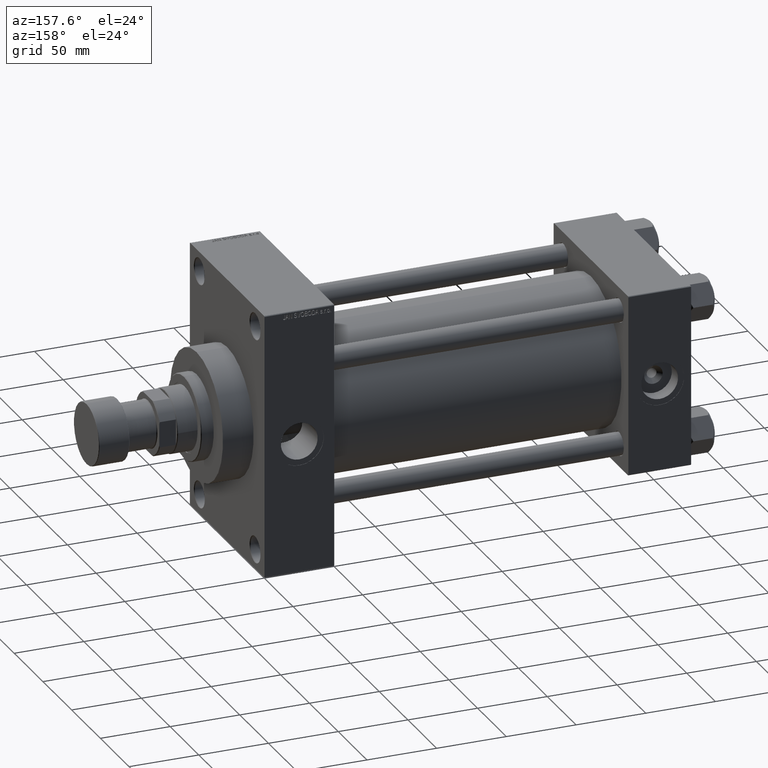
[diagram: clean part render]
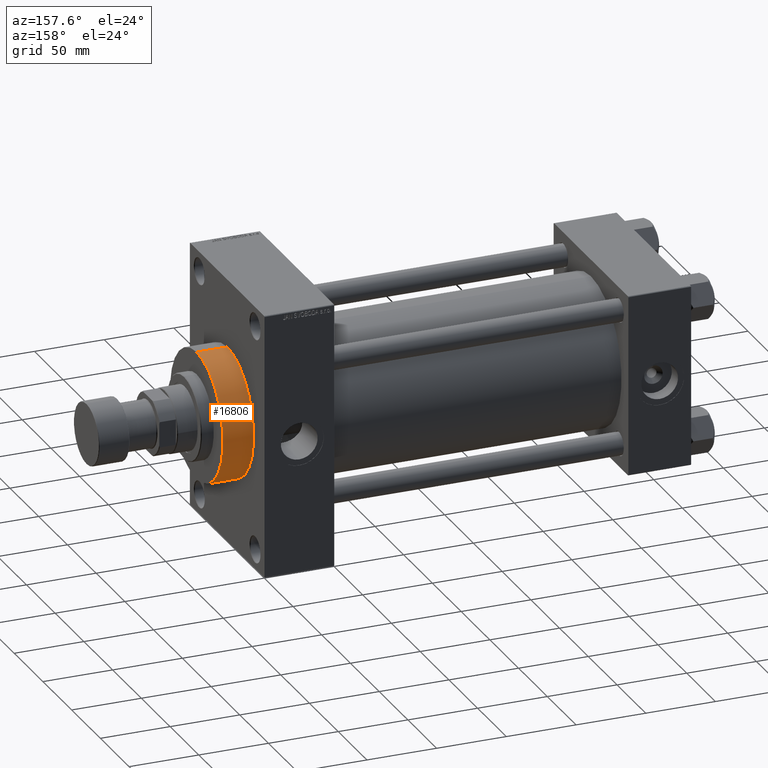
[diagram: same view with one face highlighted and labeled with its STEP entity id]
A machine part, auxiliary view. The second image highlights one B-rep face of the part: STEP entity #16806.
In plain terms, the highlighted cylindrical surface (partial cylindrical patch) has radius 46 mm, axis along (-1, -0, -0).
Its self-contained STEP definition (entity closure, byte-faithful):
#324 = CARTESIAN_POINT ( 'NONE',  ( 328.0000000000000000, 0.000000000000000000, 46.00000000000000000 ) ) ;
#1571 = DIRECTION ( 'NONE',  ( 0.000000000000000000, 0.000000000000000000, 1.000000000000000000 ) ) ;
#3548 = DIRECTION ( 'NONE',  ( 0.000000000000000000, 0.000000000000000000, -1.000000000000000000 ) ) ;
#4610 = CARTESIAN_POINT ( 'NONE',  ( 328.0000000000000000, 5.633375276077824704E-15, -46.00000000000000000 ) ) ;
#5129 = EDGE_CURVE ( 'NONE', #17052, #29637, #27708, .T. ) ;
#5877 = ORIENTED_EDGE ( 'NONE', *, *, #5129, .T. ) ;
#8420 = AXIS2_PLACEMENT_3D ( 'NONE', #15068, #41083, #47903 ) ;
#10587 = CARTESIAN_POINT ( 'NONE',  ( 328.0000000000000000, 5.633375276077824704E-15, -46.00000000000000000 ) ) ;
#10801 = VECTOR ( 'NONE', #34505, 1000.000000000000000 ) ;
#10991 = EDGE_CURVE ( 'NONE', #21185, #17052, #23103, .T. ) ;
#11406 = AXIS2_PLACEMENT_3D ( 'NONE', #36872, #37361, #3548 ) ;
#13932 = DIRECTION ( 'NONE',  ( -1.000000000000000000, -0.000000000000000000, -0.000000000000000000 ) ) ;
#14169 = LINE ( 'NONE', #43819, #19125 ) ;
#15068 = CARTESIAN_POINT ( 'NONE',  ( 328.0000000000000000, 0.000000000000000000, 0.000000000000000000 ) ) ;
#16806 = ADVANCED_FACE ( 'NONE', ( #31477 ), #27364, .T. ) ;
#17020 = VERTEX_POINT ( 'NONE', #324 ) ;
#17052 = VERTEX_POINT ( 'NONE', #38006 ) ;
#17721 = ORIENTED_EDGE ( 'NONE', *, *, #46525, .F. ) ;
#17736 = CIRCLE ( 'NONE', #8420, 46.00000000000000000 ) ;
#18974 = ORIENTED_EDGE ( 'NONE', *, *, #10991, .T. ) ;
#19125 = VECTOR ( 'NONE', #13932, 1000.000000000000000 ) ;
#21185 = VERTEX_POINT ( 'NONE', #10587 ) ;
#23103 = LINE ( 'NONE', #4610, #10801 ) ;
#23799 = ORIENTED_EDGE ( 'NONE', *, *, #40804, .F. ) ;
#27364 = CYLINDRICAL_SURFACE ( 'NONE', #43497, 46.00000000000000000 ) ;
#27708 = CIRCLE ( 'NONE', #11406, 46.00000000000000000 ) ;
#29637 = VERTEX_POINT ( 'NONE', #36373 ) ;
#31477 = FACE_OUTER_BOUND ( 'NONE', #40632, .T. ) ;
#34505 = DIRECTION ( 'NONE',  ( -1.000000000000000000, -0.000000000000000000, -0.000000000000000000 ) ) ;
#34887 = CARTESIAN_POINT ( 'NONE',  ( 328.0000000000000000, 0.000000000000000000, 0.000000000000000000 ) ) ;
#36373 = CARTESIAN_POINT ( 'NONE',  ( 306.0000000000000000, 0.000000000000000000, 46.00000000000000000 ) ) ;
#36872 = CARTESIAN_POINT ( 'NONE',  ( 306.0000000000000000, 0.000000000000000000, 0.000000000000000000 ) ) ;
#37361 = DIRECTION ( 'NONE',  ( 1.000000000000000000, 0.000000000000000000, 0.000000000000000000 ) ) ;
#38006 = CARTESIAN_POINT ( 'NONE',  ( 306.0000000000000000, 5.633375276077824704E-15, -46.00000000000000000 ) ) ;
#40632 = EDGE_LOOP ( 'NONE', ( #17721, #18974, #5877, #23799 ) ) ;
#40804 = EDGE_CURVE ( 'NONE', #17020, #29637, #14169, .T. ) ;
#41083 = DIRECTION ( 'NONE',  ( 1.000000000000000000, 0.000000000000000000, 0.000000000000000000 ) ) ;
#43497 = AXIS2_PLACEMENT_3D ( 'NONE', #34887, #46325, #1571 ) ;
#43819 = CARTESIAN_POINT ( 'NONE',  ( 328.0000000000000000, 0.000000000000000000, 46.00000000000000000 ) ) ;
#46325 = DIRECTION ( 'NONE',  ( -1.000000000000000000, -0.000000000000000000, -0.000000000000000000 ) ) ;
#46525 = EDGE_CURVE ( 'NONE', #21185, #17020, #17736, .T. ) ;
#47903 = DIRECTION ( 'NONE',  ( 0.000000000000000000, 0.000000000000000000, -1.000000000000000000 ) ) ;